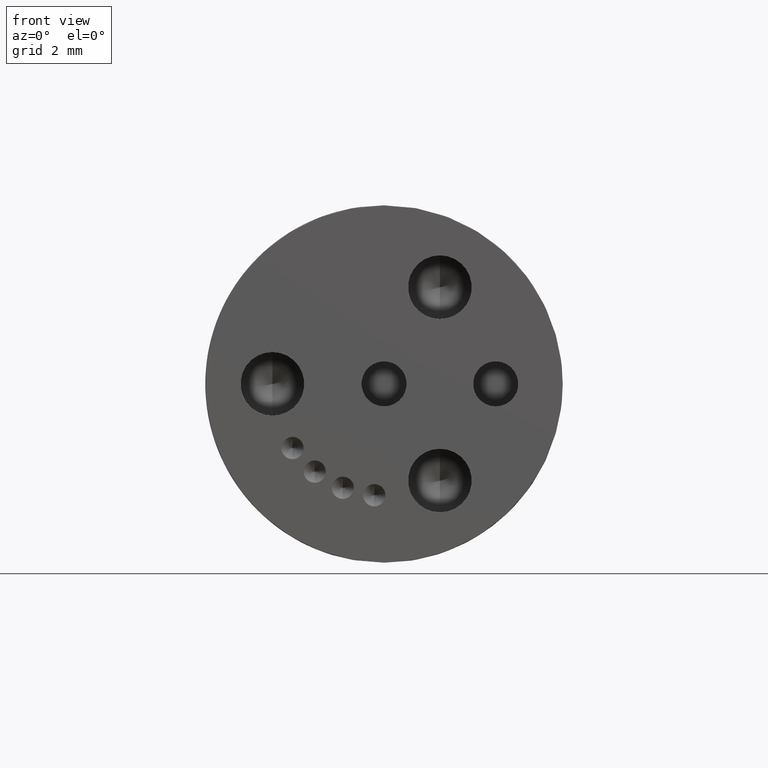
[diagram: clean part render]
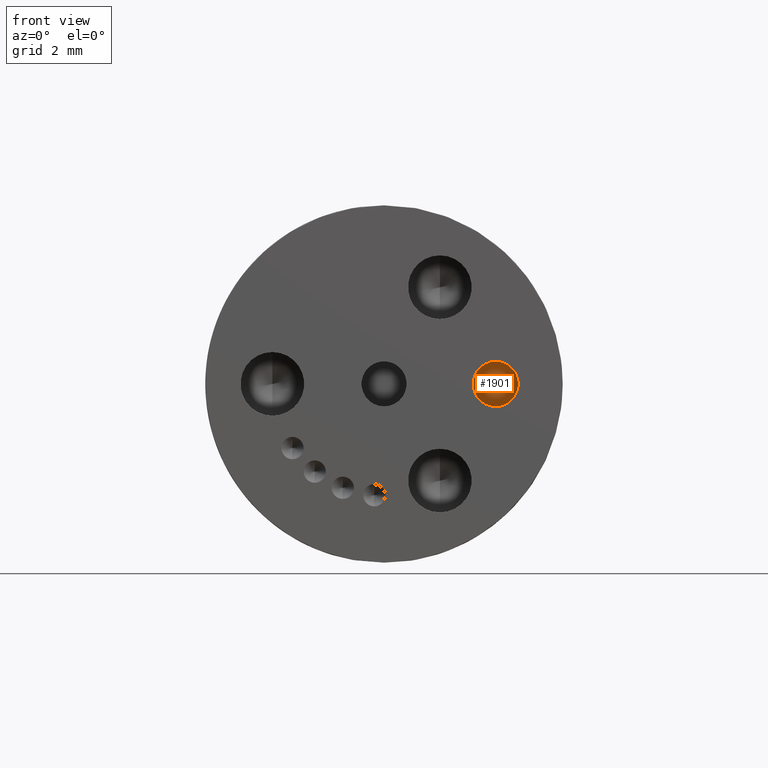
[diagram: same view with one face highlighted and labeled with its STEP entity id]
A machine part, front view. The second image highlights one B-rep face of the part: STEP entity #1901.
In plain terms, the highlighted planar face has unit normal (0, -1, 0).
Its self-contained STEP definition (entity closure, byte-faithful):
#49 = CIRCLE ( 'NONE', #2409, 0.03150000000000000700 ) ;
#687 = CARTESIAN_POINT ( 'NONE',  ( 0.1486294180125611900, -0.2608196174343081500, -0.02999103035275719000 ) ) ;
#921 = DIRECTION ( 'NONE',  ( 0.0000000000000000000, -1.000000000000000000, 0.0000000000000000000 ) ) ;
#1070 = EDGE_CURVE ( 'NONE', #3496, #2287, #2395, .T. ) ;
#1158 = DIRECTION ( 'NONE',  ( 0.0000000000000000000, 0.0000000000000000000, -1.000000000000000000 ) ) ;
#1501 = EDGE_LOOP ( 'NONE', ( #2599, #4431 ) ) ;
#1511 = CARTESIAN_POINT ( 'NONE',  ( 0.1486294180125611900, -0.2608196174343081500, 0.001508969647242816400 ) ) ;
#1901 = ADVANCED_FACE ( 'NONE', ( #3036 ), #2635, .T. ) ;
#2282 = AXIS2_PLACEMENT_3D ( 'NONE', #687, #3928, #1158 ) ;
#2287 = VERTEX_POINT ( 'NONE', #1511 ) ;
#2395 = CIRCLE ( 'NONE', #2282, 0.03150000000000000700 ) ;
#2409 = AXIS2_PLACEMENT_3D ( 'NONE', #3693, #921, #4155 ) ;
#2599 = ORIENTED_EDGE ( 'NONE', *, *, #1070, .T. ) ;
#2635 = PLANE ( 'NONE',  #4945 ) ;
#2654 = DIRECTION ( 'NONE',  ( 0.0000000000000000000, -0.0000000000000000000, -1.000000000000000000 ) ) ;
#3036 = FACE_OUTER_BOUND ( 'NONE', #1501, .T. ) ;
#3496 = VERTEX_POINT ( 'NONE', #3953 ) ;
#3693 = CARTESIAN_POINT ( 'NONE',  ( 0.1486294180125611900, -0.2608196174343081500, -0.02999103035275719000 ) ) ;
#3928 = DIRECTION ( 'NONE',  ( 0.0000000000000000000, -1.000000000000000000, 0.0000000000000000000 ) ) ;
#3953 = CARTESIAN_POINT ( 'NONE',  ( 0.1486294180125611900, -0.2608196174343081500, -0.06149103035275720100 ) ) ;
#4155 = DIRECTION ( 'NONE',  ( 0.0000000000000000000, 0.0000000000000000000, -1.000000000000000000 ) ) ;
#4431 = ORIENTED_EDGE ( 'NONE', *, *, #5753, .T. ) ;
#4945 = AXIS2_PLACEMENT_3D ( 'NONE', #4947, #5414, #2654 ) ;
#4947 = CARTESIAN_POINT ( 'NONE',  ( 0.1486294180125611900, -0.2608196174343081500, -0.02999103035275719000 ) ) ;
#5414 = DIRECTION ( 'NONE',  ( 0.0000000000000000000, -1.000000000000000000, 0.0000000000000000000 ) ) ;
#5753 = EDGE_CURVE ( 'NONE', #2287, #3496, #49, .T. ) ;